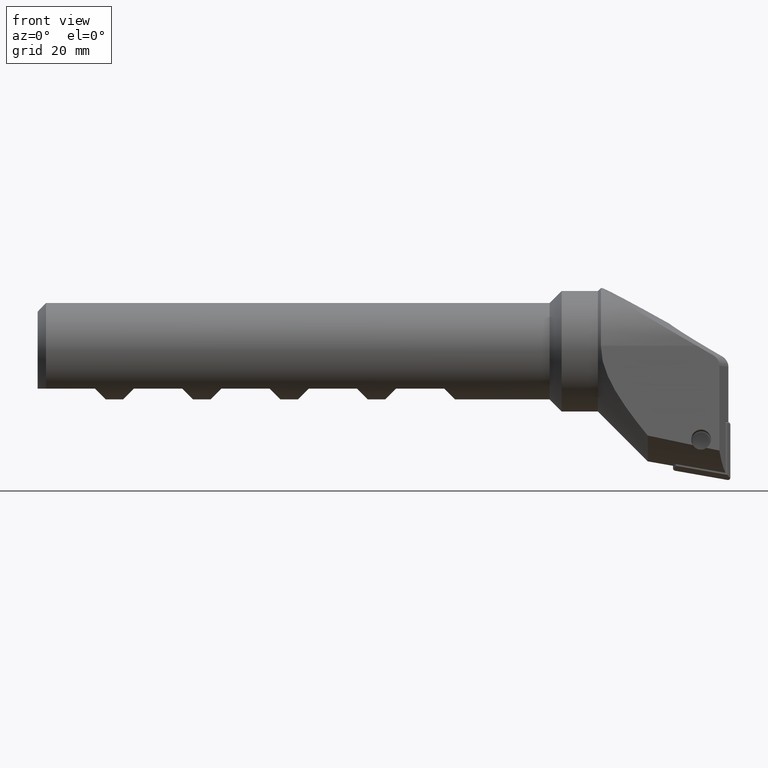
[diagram: clean part render]
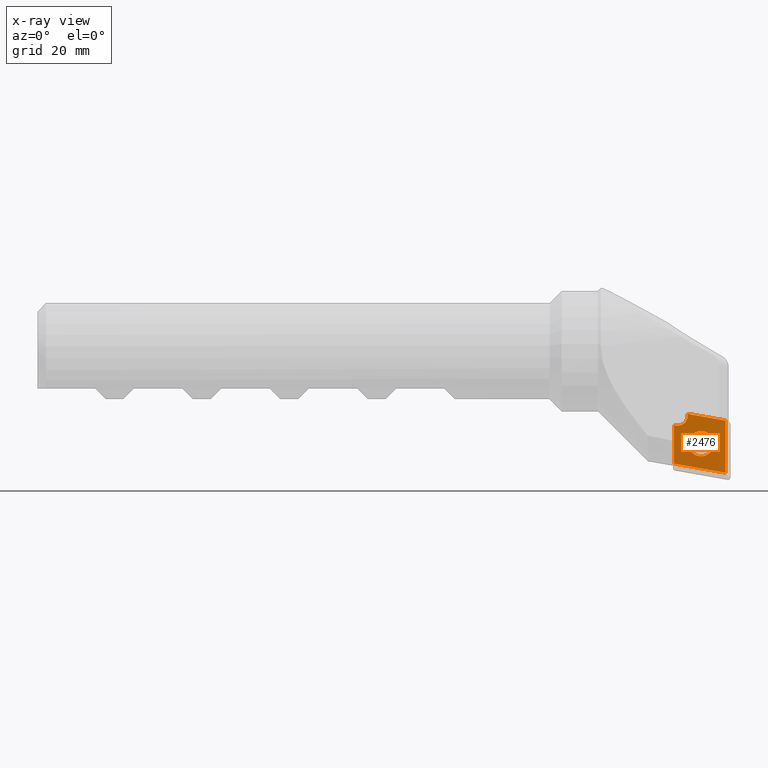
[diagram: x-ray — body ghosted, one internal face saturated and labeled with its STEP entity id]
A machine part, front view, then the same camera in x-ray: the body is ghosted and one INTERNAL B-rep face — a face not visible from any outside direction — is saturated and labeled: STEP entity #2476.
In plain terms, the highlighted planar face has unit normal (0, 0.9962, -0.0872).
Its self-contained STEP definition (entity closure, byte-faithful):
#34 = VECTOR ( 'NONE', #554, 1000.000000000000100 ) ;
#55 = DIRECTION ( 'NONE',  ( 0.0000000000000000000, 0.08715574274765834600, 0.9961946980917455500 ) ) ;
#297 = EDGE_CURVE ( 'NONE', #1481, #631, #1497, .T. ) ;
#311 = CARTESIAN_POINT ( 'NONE',  ( 110.1554933045272800, -3.275360819611434800, -13.26190389326470300 ) ) ;
#401 = EDGE_CURVE ( 'NONE', #631, #1513, #815, .T. ) ;
#554 = DIRECTION ( 'NONE',  ( 0.0000000000000000000, 0.08715574274765836000, 0.9961946980917455500 ) ) ;
#631 = VERTEX_POINT ( 'NONE', #1283 ) ;
#640 = FACE_BOUND ( 'NONE', #787, .T. ) ;
#708 = EDGE_CURVE ( 'NONE', #3346, #1513, #3342, .T. ) ;
#737 = FACE_OUTER_BOUND ( 'NONE', #3755, .T. ) ;
#763 = CARTESIAN_POINT ( 'NONE',  ( 110.1554933045272800, -3.458387879381517900, -15.35391275925737300 ) ) ;
#787 = EDGE_LOOP ( 'NONE', ( #1589 ) ) ;
#815 = LINE ( 'NONE', #3205, #34 ) ;
#913 = ORIENTED_EDGE ( 'NONE', *, *, #1092, .T. ) ;
#926 = VECTOR ( 'NONE', #2946, 1000.000000000000000 ) ;
#931 = CARTESIAN_POINT ( 'NONE',  ( 105.6554933045272700, -3.187264108931923400, -12.25495388249660100 ) ) ;
#937 = PLANE ( 'NONE',  #3120 ) ;
#1014 = DIRECTION ( 'NONE',  ( 0.9848077530122071300, -0.01513443590133910700, -0.1729873939250946000 ) ) ;
#1092 = EDGE_CURVE ( 'NONE', #1926, #1481, #1715, .T. ) ;
#1133 = VERTEX_POINT ( 'NONE', #311 ) ;
#1191 = CARTESIAN_POINT ( 'NONE',  ( 114.2125452932154800, -4.042048694171888300, -22.02518639938355000 ) ) ;
#1213 = DIRECTION ( 'NONE',  ( 0.0000000000000000000, 0.08715574274765841600, 0.9961946980917454300 ) ) ;
#1260 = CARTESIAN_POINT ( 'NONE',  ( 105.6554933045272700, -2.990981116475195400, -10.01142901257370000 ) ) ;
#1283 = CARTESIAN_POINT ( 'NONE',  ( 105.6554933045272700, -3.749360474922675200, -18.67974474496296000 ) ) ;
#1363 = ORIENTED_EDGE ( 'NONE', *, *, #297, .T. ) ;
#1481 = VERTEX_POINT ( 'NONE', #1733 ) ;
#1497 = B_SPLINE_CURVE_WITH_KNOTS ( 'NONE', 3,
 ( #2633, #2058, #2917, #2021 ),
 .UNSPECIFIED., .F., .F.,
 ( 4, 4 ),
 ( 0.0003119496319715603700, 0.009002509546470494400 ),
 .UNSPECIFIED. ) ;
#1513 = VERTEX_POINT ( 'NONE', #931 ) ;
#1589 = ORIENTED_EDGE ( 'NONE', *, *, #2235, .F. ) ;
#1715 = LINE ( 'NONE', #1191, #926 ) ;
#1733 = CARTESIAN_POINT ( 'NONE',  ( 114.2125452932154800, -3.881616059181721900, -20.19143299037612800 ) ) ;
#1811 = CARTESIAN_POINT ( 'NONE',  ( 107.8733736949851300, -3.025065300422319600, -10.40101301778625900 ) ) ;
#1925 = VECTOR ( 'NONE', #1014, 1000.000000000000100 ) ;
#1926 = VERTEX_POINT ( 'NONE', #3815 ) ;
#1966 = LINE ( 'NONE', #1260, #1925 ) ;
#1990 = ORIENTED_EDGE ( 'NONE', *, *, #3021, .T. ) ;
#2021 = CARTESIAN_POINT ( 'NONE',  ( 105.6554933045272700, -3.749360474922675200, -18.67974474496296000 ) ) ;
#2058 = CARTESIAN_POINT ( 'NONE',  ( 111.3601580747383500, -3.837548834390990500, -19.68774230618052100 ) ) ;
#2235 = EDGE_CURVE ( 'NONE', #1133, #1133, #3574, .T. ) ;
#2238 = AXIS2_PLACEMENT_3D ( 'NONE', #3284, #2695, #1213 ) ;
#2476 = ADVANCED_FACE ( 'NONE', ( #737, #640 ), #937, .T. ) ;
#2633 = CARTESIAN_POINT ( 'NONE',  ( 114.2125452932154800, -3.881616059181721900, -20.19143299037612800 ) ) ;
#2695 = DIRECTION ( 'NONE',  ( 7.045937527079175700E-018, 0.9961946980917455500, -0.08715574274765834600 ) ) ;
#2917 = CARTESIAN_POINT ( 'NONE',  ( 108.5078044666339800, -3.793465078952045700, -19.18386267581124500 ) ) ;
#2946 = DIRECTION ( 'NONE',  ( 3.495501893001519300E-018, -0.08715574274765834600, -0.9961946980917455500 ) ) ;
#3021 = EDGE_CURVE ( 'NONE', #3346, #1926, #1966, .T. ) ;
#3080 = DIRECTION ( 'NONE',  ( 0.0000000000000000000, 0.08715574274765845700, 0.9961946980917456600 ) ) ;
#3120 = AXIS2_PLACEMENT_3D ( 'NONE', #3276, #3308, #55 ) ;
#3179 = ORIENTED_EDGE ( 'NONE', *, *, #708, .F. ) ;
#3194 = ORIENTED_EDGE ( 'NONE', *, *, #401, .T. ) ;
#3205 = CARTESIAN_POINT ( 'NONE',  ( 105.6554933045272700, -3.906472654437259000, -20.47554517421548000 ) ) ;
#3276 = CARTESIAN_POINT ( 'NONE',  ( 115.0000000000000000, -3.134586644741699200, -11.65284771162550300 ) ) ;
#3284 = CARTESIAN_POINT ( 'NONE',  ( 106.2554933045272800, -3.053302018196039300, -10.72376017879818900 ) ) ;
#3308 = DIRECTION ( 'NONE',  ( 7.045937527079175700E-018, 0.9961946980917455500, -0.08715574274765834600 ) ) ;
#3342 = CIRCLE ( 'NONE', #2238, 1.649999999999999000 ) ;
#3346 = VERTEX_POINT ( 'NONE', #1811 ) ;
#3403 = AXIS2_PLACEMENT_3D ( 'NONE', #763, #3457, #3080 ) ;
#3457 = DIRECTION ( 'NONE',  ( -0.0000000000000000000, 0.9961946980917455500, -0.08715574274765833200 ) ) ;
#3574 = CIRCLE ( 'NONE', #3403, 2.100000000000003600 ) ;
#3755 = EDGE_LOOP ( 'NONE', ( #3179, #1990, #913, #1363, #3194 ) ) ;
#3815 = CARTESIAN_POINT ( 'NONE',  ( 114.2125452932154800, -3.122485112489758100, -11.51452656504227100 ) ) ;